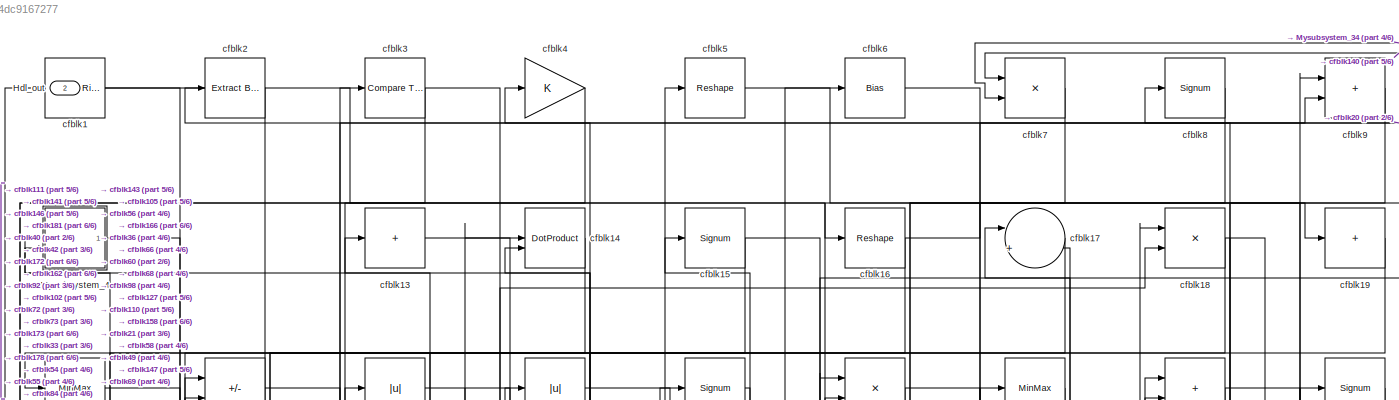
[diagram: root canvas - part 1/6, full width, top band]
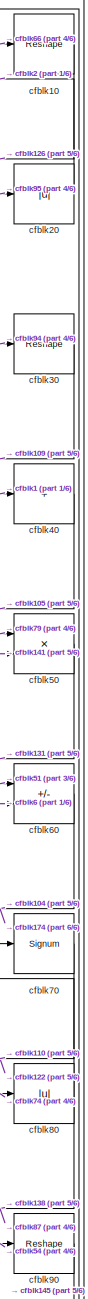
[diagram: root canvas - part 2/6, top right region]
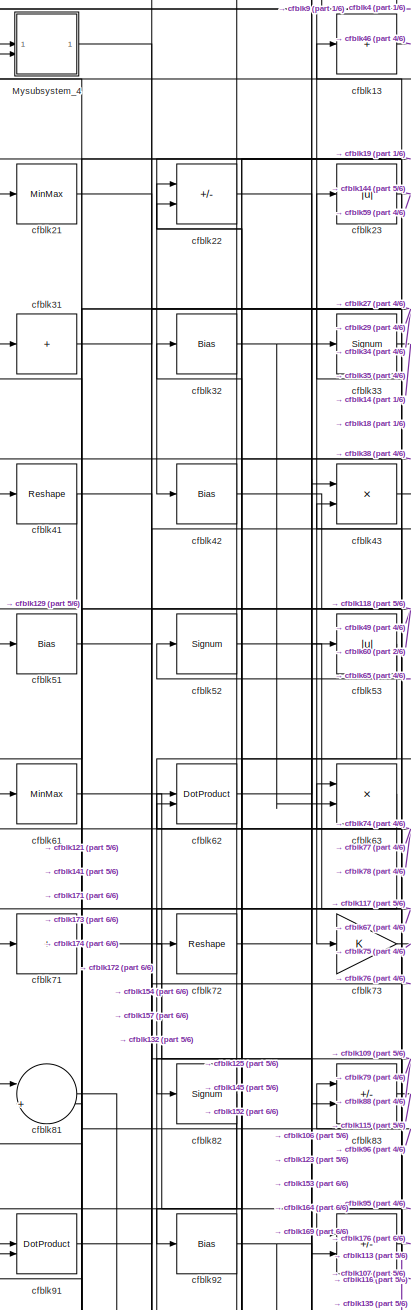
[diagram: root canvas - part 3/6, top left region]
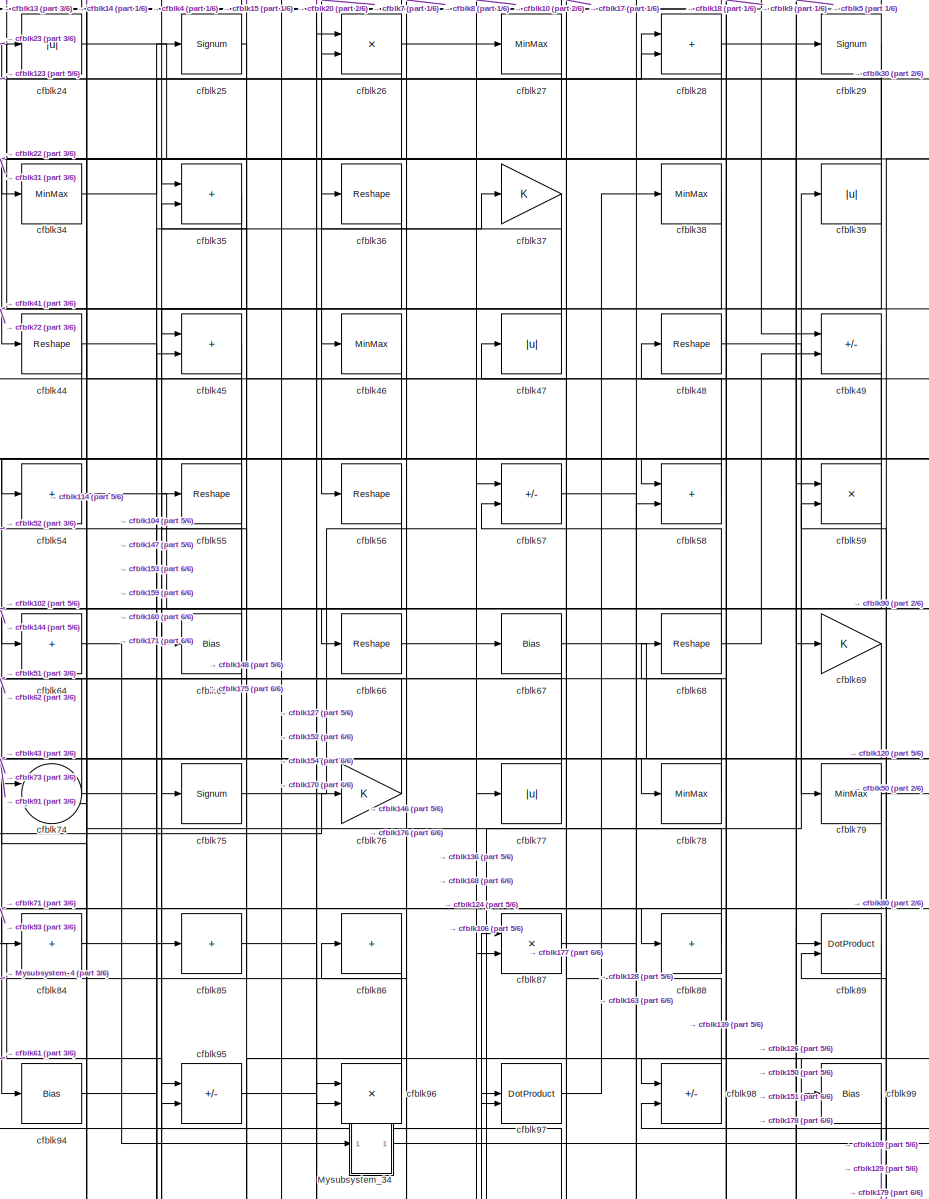
[diagram: root canvas - part 4/6, top center region]
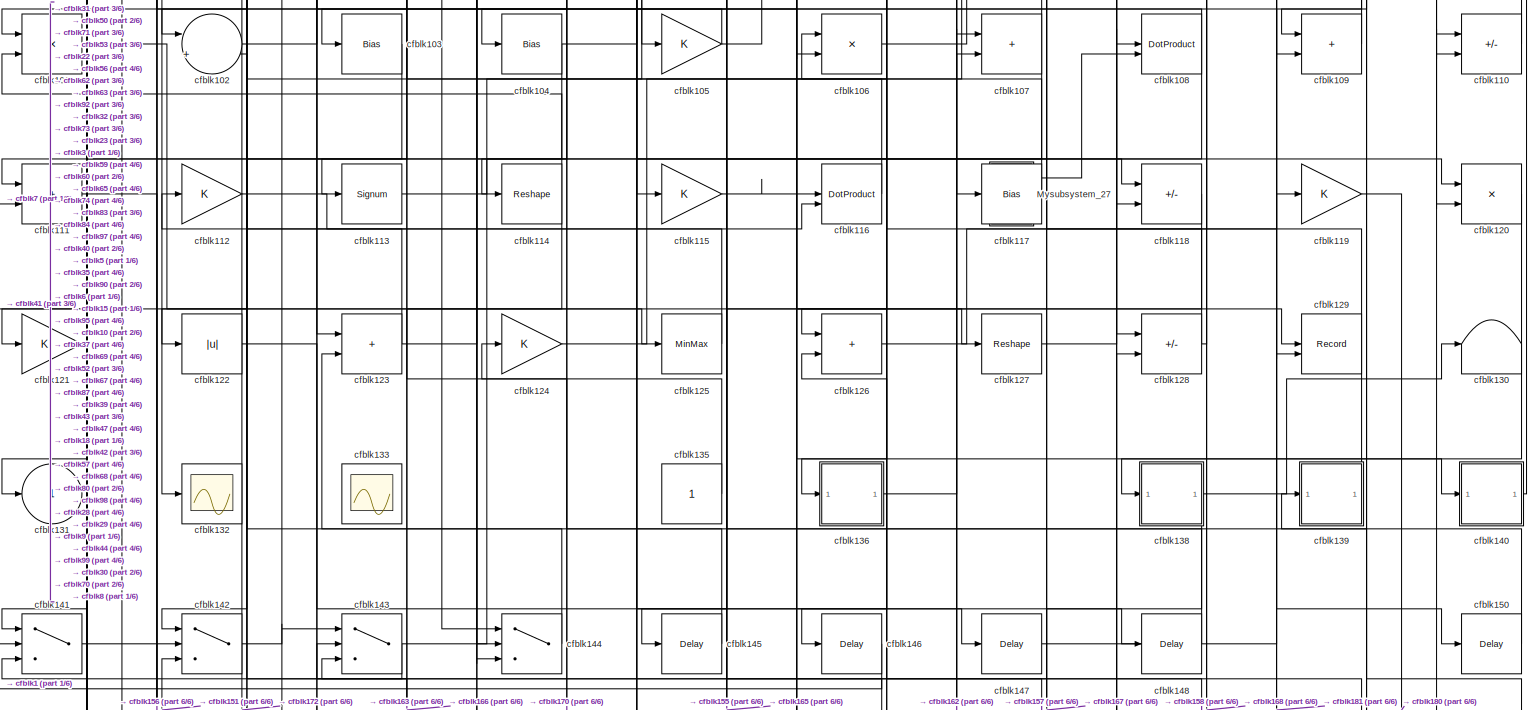
[diagram: root canvas - part 5/6, full width, middle band]
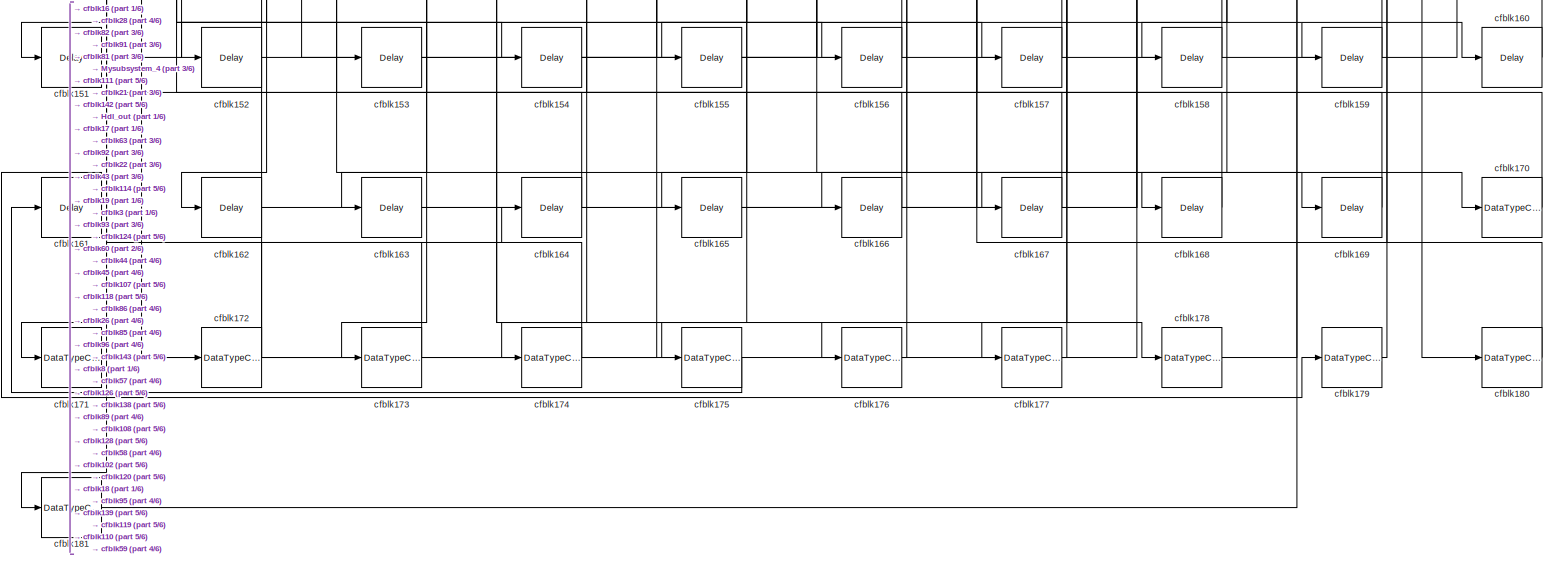
[diagram: root canvas - part 6/6, full width, bottom band]
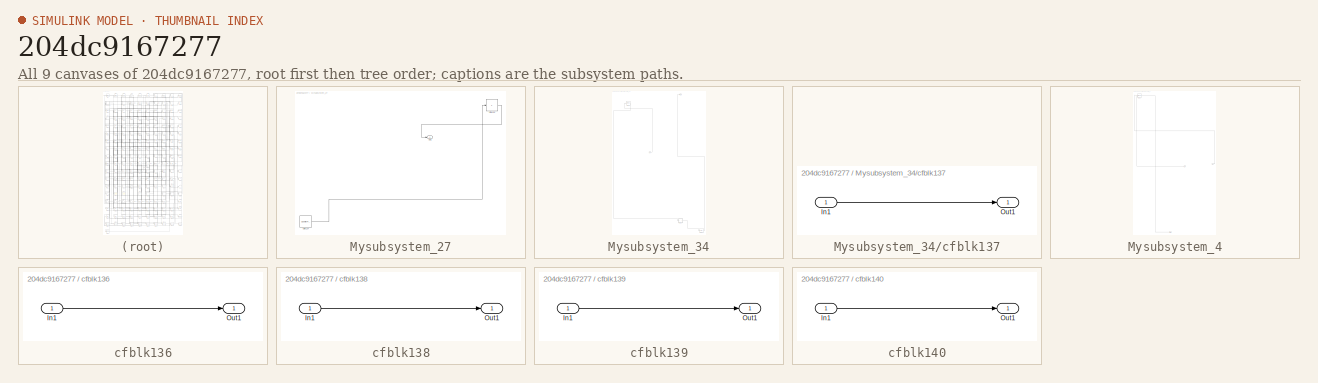
[diagram: thumbnail index - all 9 canvases of the model, root first then tree order]
MODEL slx_204dc9167277
KIND model
CONFIG AbsTol = auto
CONFIG EnableMultiTasking = off
CONFIG FixedStep = auto
CONFIG MaxStep = auto
CONFIG MinStep = auto
CONFIG RelTol = 1e-3
CONFIG SampleTimeConstraint = Unconstrained
CONFIG SolverName = VariableStepAuto
CONFIG StartTime = 0.0
CONFIG StopTime = 10.0
BLOCK [Outport] Hdl_out
  OutDataTypeStr = uint8
  Port = 2
BLOCK [SubSystem] Mysubsystem_27
  RTWFcnName = Mysubsystem_27
  RTWFcnNameOpts = User specified
  RTWFileNameOpts = Use function name
  RTWSystemCode = Reusable function
  TreatAsAtomicUnit = on
BLOCK [Outport] Mysubsystem_27/Out1
BLOCK [Sum] Mysubsystem_27/cfblk100
  IconShape = rectangular
  Inputs = +
BLOCK [Reference] Mysubsystem_27/cfblk134  REF=hdlsllib/Sources/Counter
Free-Running
  SourceBlock = hdlsllib/Sources/Counter\nFree-Running
  SourceType = Counter Free-Running
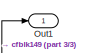
[diagram: Mysubsystem_34 - part 1/3, top right region]
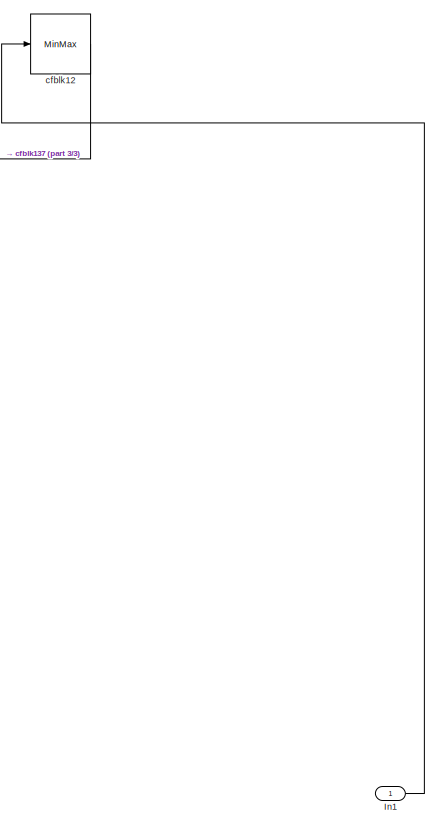
[diagram: Mysubsystem_34 - part 2/3, top left region]
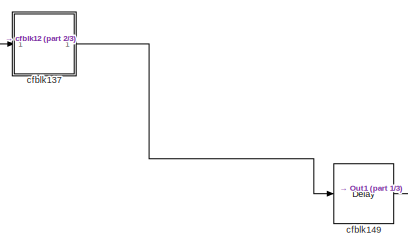
[diagram: Mysubsystem_34 - part 3/3, bottom right region]
BLOCK [SubSystem] Mysubsystem_34
  RTWFcnName = Mysubsystem_34
  RTWFcnNameOpts = User specified
  RTWFileNameOpts = Use function name
  RTWSystemCode = Reusable function
  TreatAsAtomicUnit = on
BLOCK [Inport] Mysubsystem_34/In1
BLOCK [Outport] Mysubsystem_34/Out1
BLOCK [MinMax] Mysubsystem_34/cfblk12
BLOCK [SubSystem] Mysubsystem_34/cfblk137
  LibrarySourceBlock = hdlsllib/Ports &\nSubsystems/Subsystem
BLOCK [Inport] Mysubsystem_34/cfblk137/In1
BLOCK [Outport] Mysubsystem_34/cfblk137/Out1
BLOCK [Delay] Mysubsystem_34/cfblk149
  InputPortMap = u0
  SampleTime = 1
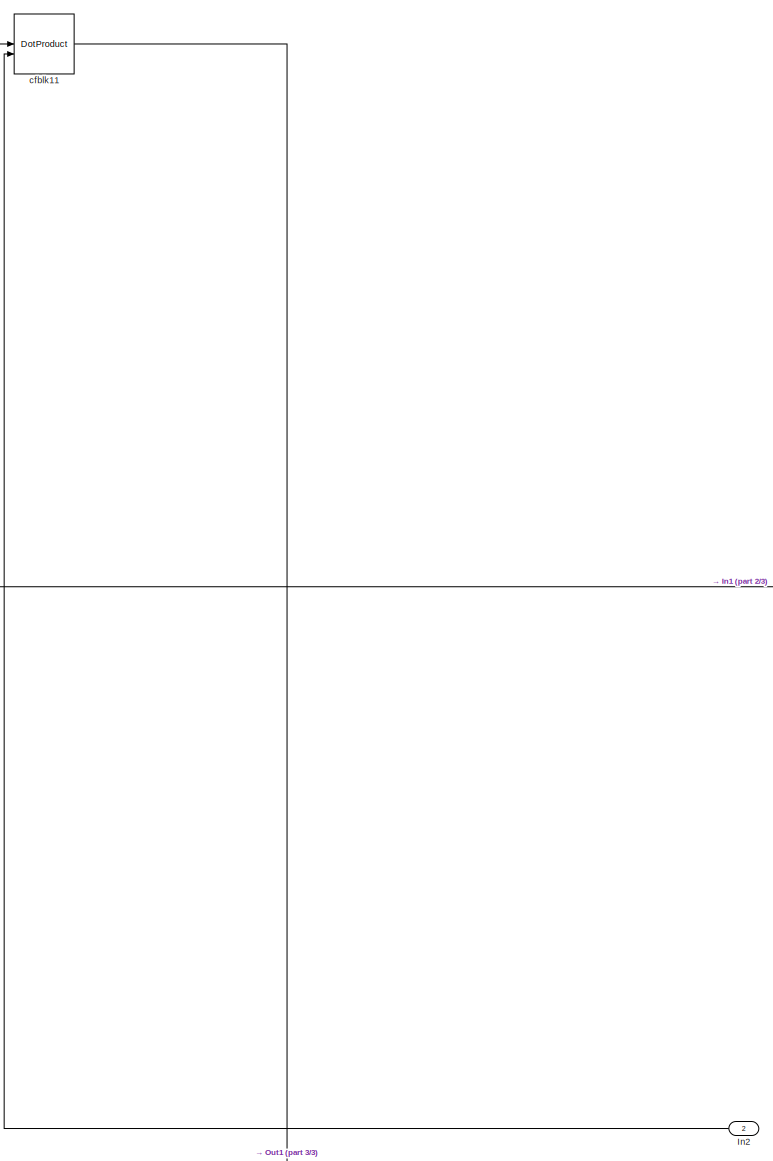
[diagram: Mysubsystem_4 - part 1/3, top center region]
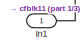
[diagram: Mysubsystem_4 - part 2/3, middle right region]
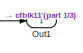
[diagram: Mysubsystem_4 - part 3/3, bottom center region]
BLOCK [SubSystem] Mysubsystem_4
  RTWFcnName = Mysubsystem_4
  RTWFcnNameOpts = User specified
  RTWFileNameOpts = Use function name
  RTWSystemCode = Reusable function
  TreatAsAtomicUnit = on
BLOCK [Inport] Mysubsystem_4/In1
BLOCK [Inport] Mysubsystem_4/In2
  Port = 2
BLOCK [Outport] Mysubsystem_4/Out1
BLOCK [DotProduct] Mysubsystem_4/cfblk11
  OutDataTypeStr = Inherit: Inherit via internal rule
BLOCK [Reference] cfblk1  REF=hdlsllib/Logic and Bit
Operations/Detect Rise
Nonnegative
  SourceBlock = hdlsllib/Logic and Bit\nOperations/Detect Rise\nNonnegative
  SourceType = Detect Rise Nonnegative
BLOCK [Reshape] cfblk10
BLOCK [Product] cfblk101
  Inputs = */
  OutDataTypeStr = uint8
  RndMeth = Zero
  SaturateOnIntegerOverflow = on
BLOCK [Sum] cfblk102
  Inputs = |++
  OutDataTypeStr = uint8
BLOCK [Bias] cfblk103
  Bias = 0.0
  SaturateOnIntegerOverflow = off
BLOCK [Bias] cfblk104
  Bias = 0.0
  SaturateOnIntegerOverflow = off
BLOCK [Gain] cfblk105
  OutDataTypeStr = uint8
BLOCK [Product] cfblk106
  Inputs = */
  OutDataTypeStr = uint8
  RndMeth = Zero
  SaturateOnIntegerOverflow = on
BLOCK [Sum] cfblk107
  IconShape = rectangular
  OutDataTypeStr = uint8
BLOCK [DotProduct] cfblk108
  OutDataTypeStr = uint8
BLOCK [Sum] cfblk109
  IconShape = rectangular
  OutDataTypeStr = uint8
BLOCK [Sum] cfblk110
  IconShape = rectangular
  Inputs = +-
  OutDataTypeStr = uint8
BLOCK [Sum] cfblk111
  IconShape = rectangular
  OutDataTypeStr = uint8
BLOCK [Gain] cfblk112
  OutDataTypeStr = uint8
BLOCK [Signum] cfblk113
BLOCK [Reshape] cfblk114
BLOCK [Gain] cfblk115
  OutDataTypeStr = uint8
BLOCK [DotProduct] cfblk116
  OutDataTypeStr = uint8
BLOCK [Bias] cfblk117
  Bias = 0.0
  SaturateOnIntegerOverflow = off
BLOCK [Sum] cfblk118
  IconShape = rectangular
  Inputs = +-
  OutDataTypeStr = uint8
BLOCK [Gain] cfblk119
  OutDataTypeStr = uint8
BLOCK [Product] cfblk120
  Inputs = */
  OutDataTypeStr = uint8
  RndMeth = Zero
  SaturateOnIntegerOverflow = on
BLOCK [Gain] cfblk121
  OutDataTypeStr = uint8
BLOCK [Abs] cfblk122
  OutDataTypeStr = uint8
  SaturateOnIntegerOverflow = off
BLOCK [Sum] cfblk123
  IconShape = rectangular
  OutDataTypeStr = uint8
BLOCK [Gain] cfblk124
  OutDataTypeStr = uint8
BLOCK [MinMax] cfblk125
  OutDataTypeStr = uint8
BLOCK [Sum] cfblk126
  IconShape = rectangular
  OutDataTypeStr = uint8
BLOCK [Reshape] cfblk127
BLOCK [Sum] cfblk128
  IconShape = rectangular
  Inputs = +-
  OutDataTypeStr = uint8
BLOCK [Record] cfblk129
  CompatibilityTag = XY
  FileSettingsInternal = {"entries":[{"content":{"excelSettings":{"content":{},"type":"Streamout.ExcelSettings"}},"type":"Streamout.FileSettingStorage","uuid":""}],"packageUris":["http:\/\/schema.mathworks.com\/mf0\/streamout_blocks\/R2020a"],"version":"1.0"}
  Layout = [1 1]
  SignalsInternal = {"entries":[{"content":{"signals":[{"content":{"blockPath":[],"dimensions":[1],"domain":"","lineColor":"#a2142f","plots":[1],"port":1,"signalID":44252,"signalName":"cfblk41"},"type":"RecordBlkView.Signal","uuid":""},{"content":{"blockPath":[],"dimensions":[1],"domain":"","lineColor":"#139fff","plots":[1],"port":2,"signalID":44255,"signalName":"cfblk99"},"type":"RecordBlkView.Signal","uuid":""}]},"...<+142ch>
  VisualizationBindings = {"xyplotplugin":{"info":[{"series":[{"bindingParametersList":[{"parameter":"X-Axis","signalID":44252,"signalName":"cfblk41"},{"parameter":"Y-Axis","signalID":44255,"signalName":"cfblk99"}],"seriesID":27918}],"subplotID":1}]}}
  st = -1
BLOCK [Sum] cfblk13
  IconShape = rectangular
  Inputs = +
  OutDataTypeStr = uint8
BLOCK [Terminator] cfblk130
BLOCK [Outport] cfblk131
  OutDataTypeStr = uint8
  VectorParamsAs1DForOutWhenUnconnected = off
BLOCK [Scope] cfblk132
  Floating = off
  NumInputPorts = 1
  ScopeSpecificationString = Simulink.scopes.TimeScopeBlockCfg('CurrentConfiguration', extmgr.ConfigurationSet(extmgr.Configuration('Core','General UI',true),extmgr.Configuration('Core','Source UI',true),extmgr.Configuration('Sources','WiredSimulink',true,'DataLoggingVariableName','ScopeData2','DataLoggingSaveFormat','Array','DataLoggingLimitDataPoints',true,'DataLoggingDecimation','1'),extmgr.Configuration('Visuals','Time Do...<+868ch>
BLOCK [Scope] cfblk133
  Floating = on
  NumInputPorts = 1
  ScopeSpecificationString = Simulink.scopes.TimeScopeBlockCfg('CurrentConfiguration', extmgr.ConfigurationSet(extmgr.Configuration('Core','General UI',true,'FigureColor',[0.156862745098039 0.156862745098039 0.156862745098039]),extmgr.Configuration('Core','Source UI',true),extmgr.Configuration('Sources','WiredSimulink',true,'DataLoggingVariableName','ScopeData1','DataLoggingSaveFormat','StructureWithTime','DataLoggingLimitDat...<+2713ch>
BLOCK [Constant] cfblk135
  OutDataTypeStr = uint8
  SampleTime = -1
BLOCK [SubSystem] cfblk136
  LibrarySourceBlock = hdlsllib/Ports &\nSubsystems/Subsystem
BLOCK [Inport] cfblk136/In1
BLOCK [Outport] cfblk136/Out1
BLOCK [SubSystem] cfblk138
  LibrarySourceBlock = hdlsllib/Ports &\nSubsystems/Subsystem
BLOCK [Inport] cfblk138/In1
BLOCK [Outport] cfblk138/Out1
BLOCK [SubSystem] cfblk139
  LibrarySourceBlock = hdlsllib/Ports &\nSubsystems/Subsystem
BLOCK [Inport] cfblk139/In1
BLOCK [Outport] cfblk139/Out1
BLOCK [DotProduct] cfblk14
  OutDataTypeStr = uint8
BLOCK [SubSystem] cfblk140
  LibrarySourceBlock = hdlsllib/Ports &\nSubsystems/Subsystem
BLOCK [Inport] cfblk140/In1
BLOCK [Outport] cfblk140/Out1
BLOCK [Switch] cfblk141
  InputSameDT = off
  OutDataTypeStr = uint8
  SaturateOnIntegerOverflow = off
BLOCK [Switch] cfblk142
  InputSameDT = off
  OutDataTypeStr = uint8
  SaturateOnIntegerOverflow = off
BLOCK [Switch] cfblk143
  InputSameDT = off
  OutDataTypeStr = uint8
  SaturateOnIntegerOverflow = off
BLOCK [Switch] cfblk144
  InputSameDT = off
  OutDataTypeStr = uint8
  SaturateOnIntegerOverflow = off
BLOCK [Delay] cfblk145
  InputPortMap = u0
  SampleTime = 1
BLOCK [Delay] cfblk146
  InputPortMap = u0
  SampleTime = 1
BLOCK [Delay] cfblk147
  InputPortMap = u0
  SampleTime = 1
BLOCK [Delay] cfblk148
  InputPortMap = u0
  SampleTime = 1
BLOCK [Signum] cfblk15
BLOCK [Delay] cfblk150
  InputPortMap = u0
  SampleTime = 1
BLOCK [Delay] cfblk151
  InputPortMap = u0
  SampleTime = 1
BLOCK [Delay] cfblk152
  InputPortMap = u0
  SampleTime = 1
BLOCK [Delay] cfblk153
  InputPortMap = u0
  SampleTime = 1
BLOCK [Delay] cfblk154
  InputPortMap = u0
  SampleTime = 1
BLOCK [Delay] cfblk155
  InputPortMap = u0
  SampleTime = 1
BLOCK [Delay] cfblk156
  InputPortMap = u0
  SampleTime = 1
BLOCK [Delay] cfblk157
  InputPortMap = u0
  SampleTime = 1
BLOCK [Delay] cfblk158
  InputPortMap = u0
  SampleTime = 1
BLOCK [Delay] cfblk159
  InputPortMap = u0
  SampleTime = 1
BLOCK [Reshape] cfblk16
BLOCK [Delay] cfblk160
  InputPortMap = u0
  SampleTime = 1
BLOCK [Delay] cfblk161
  InputPortMap = u0
  SampleTime = 1
BLOCK [Delay] cfblk162
  InputPortMap = u0
  SampleTime = 1
BLOCK [Delay] cfblk163
  InputPortMap = u0
  SampleTime = 1
BLOCK [Delay] cfblk164
  InputPortMap = u0
  SampleTime = 1
BLOCK [Delay] cfblk165
  InputPortMap = u0
  SampleTime = 1
BLOCK [Delay] cfblk166
  InputPortMap = u0
  SampleTime = 1
BLOCK [Delay] cfblk167
  InputPortMap = u0
  SampleTime = 1
BLOCK [Delay] cfblk168
  InputPortMap = u0
  SampleTime = 1
BLOCK [Delay] cfblk169
  InputPortMap = u0
  SampleTime = 1
BLOCK [Sum] cfblk17
  Inputs = |++
  OutDataTypeStr = uint8
BLOCK [DataTypeConversion] cfblk170
  OutDataTypeStr = uint8
  RndMeth = Floor
  SaturateOnIntegerOverflow = off
BLOCK [DataTypeConversion] cfblk171
  OutDataTypeStr = uint8
  RndMeth = Floor
  SaturateOnIntegerOverflow = off
BLOCK [DataTypeConversion] cfblk172
  OutDataTypeStr = uint8
  RndMeth = Floor
  SaturateOnIntegerOverflow = off
BLOCK [DataTypeConversion] cfblk173
  OutDataTypeStr = uint8
  RndMeth = Floor
  SaturateOnIntegerOverflow = off
BLOCK [DataTypeConversion] cfblk174
  OutDataTypeStr = uint8
  RndMeth = Floor
  SaturateOnIntegerOverflow = off
BLOCK [DataTypeConversion] cfblk175
  OutDataTypeStr = uint8
  RndMeth = Floor
  SaturateOnIntegerOverflow = off
BLOCK [DataTypeConversion] cfblk176
  OutDataTypeStr = uint8
  RndMeth = Floor
  SaturateOnIntegerOverflow = off
BLOCK [DataTypeConversion] cfblk177
  OutDataTypeStr = uint8
  RndMeth = Floor
  SaturateOnIntegerOverflow = off
BLOCK [DataTypeConversion] cfblk178
  OutDataTypeStr = uint8
  RndMeth = Floor
  SaturateOnIntegerOverflow = off
BLOCK [DataTypeConversion] cfblk179
  OutDataTypeStr = uint8
  RndMeth = Floor
  SaturateOnIntegerOverflow = off
BLOCK [Product] cfblk18
  Inputs = */
  OutDataTypeStr = uint8
  RndMeth = Zero
  SaturateOnIntegerOverflow = on
BLOCK [DataTypeConversion] cfblk180
  OutDataTypeStr = uint8
  RndMeth = Floor
  SaturateOnIntegerOverflow = off
BLOCK [DataTypeConversion] cfblk181
  OutDataTypeStr = uint8
  RndMeth = Floor
  SaturateOnIntegerOverflow = off
BLOCK [Sum] cfblk19
  IconShape = rectangular
  Inputs = +
  OutDataTypeStr = uint8
BLOCK [Reference] cfblk2  REF=simulink/Logic and Bit
Operations/Extract Bits
  LibrarySourceBlock = hdlsllib/Logic and Bit\nOperations/Extract Bits
  SourceBlock = simulink/Logic and Bit\nOperations/Extract Bits
  SourceType = Extract Bits
BLOCK [Abs] cfblk20
  OutDataTypeStr = uint8
  SaturateOnIntegerOverflow = off
BLOCK [MinMax] cfblk21
  OutDataTypeStr = uint8
BLOCK [Sum] cfblk22
  IconShape = rectangular
  Inputs = +-
  OutDataTypeStr = uint8
BLOCK [Abs] cfblk23
  OutDataTypeStr = uint8
  SaturateOnIntegerOverflow = off
BLOCK [Abs] cfblk24
  OutDataTypeStr = uint8
  SaturateOnIntegerOverflow = off
BLOCK [Signum] cfblk25
BLOCK [Product] cfblk26
  Inputs = */
  OutDataTypeStr = uint8
  RndMeth = Zero
  SaturateOnIntegerOverflow = on
BLOCK [MinMax] cfblk27
  OutDataTypeStr = uint8
BLOCK [Sum] cfblk28
  IconShape = rectangular
  OutDataTypeStr = uint8
BLOCK [Signum] cfblk29
BLOCK [Reference] cfblk3  REF=hdlsllib/Logic and Bit
Operations/Compare
To Zero
  SourceBlock = hdlsllib/Logic and Bit\nOperations/Compare\nTo Zero
  SourceType = Compare To Zero
BLOCK [Reshape] cfblk30
BLOCK [Sum] cfblk31
  IconShape = rectangular
  Inputs = +
  OutDataTypeStr = uint8
BLOCK [Bias] cfblk32
  Bias = 0.0
  SaturateOnIntegerOverflow = off
BLOCK [Signum] cfblk33
BLOCK [MinMax] cfblk34
  OutDataTypeStr = uint8
BLOCK [Sum] cfblk35
  IconShape = rectangular
  OutDataTypeStr = uint8
BLOCK [Reshape] cfblk36
BLOCK [Gain] cfblk37
  OutDataTypeStr = uint8
BLOCK [MinMax] cfblk38
  OutDataTypeStr = uint8
BLOCK [Abs] cfblk39
  OutDataTypeStr = uint8
  SaturateOnIntegerOverflow = off
BLOCK [Gain] cfblk4
  OutDataTypeStr = uint8
BLOCK [Sum] cfblk40
  IconShape = rectangular
  Inputs = +
  OutDataTypeStr = uint8
BLOCK [Reshape] cfblk41
BLOCK [Bias] cfblk42
  Bias = 0.0
  SaturateOnIntegerOverflow = off
BLOCK [Product] cfblk43
  Inputs = */
  OutDataTypeStr = uint8
  RndMeth = Zero
  SaturateOnIntegerOverflow = on
BLOCK [Reshape] cfblk44
BLOCK [Sum] cfblk45
  IconShape = rectangular
  OutDataTypeStr = uint8
BLOCK [MinMax] cfblk46
  OutDataTypeStr = uint8
BLOCK [Abs] cfblk47
  OutDataTypeStr = uint8
  SaturateOnIntegerOverflow = off
BLOCK [Reshape] cfblk48
BLOCK [Sum] cfblk49
  IconShape = rectangular
  Inputs = +-
  OutDataTypeStr = uint8
BLOCK [Reshape] cfblk5
BLOCK [Product] cfblk50
  Inputs = */
  OutDataTypeStr = uint8
  RndMeth = Zero
  SaturateOnIntegerOverflow = on
BLOCK [Bias] cfblk51
  Bias = 0.0
  SaturateOnIntegerOverflow = off
BLOCK [Signum] cfblk52
BLOCK [Abs] cfblk53
  OutDataTypeStr = uint8
  SaturateOnIntegerOverflow = off
BLOCK [Sum] cfblk54
  IconShape = rectangular
  Inputs = +
  OutDataTypeStr = uint8
BLOCK [Reshape] cfblk55
BLOCK [Reshape] cfblk56
BLOCK [Sum] cfblk57
  IconShape = rectangular
  Inputs = +-
  OutDataTypeStr = uint8
BLOCK [Sum] cfblk58
  IconShape = rectangular
  OutDataTypeStr = uint8
BLOCK [Product] cfblk59
  Inputs = */
  OutDataTypeStr = uint8
  RndMeth = Zero
  SaturateOnIntegerOverflow = on
BLOCK [Bias] cfblk6
  Bias = 0.0
  SaturateOnIntegerOverflow = off
BLOCK [Sum] cfblk60
  IconShape = rectangular
  Inputs = +-
  OutDataTypeStr = uint8
BLOCK [MinMax] cfblk61
  OutDataTypeStr = uint8
BLOCK [DotProduct] cfblk62
  OutDataTypeStr = uint8
BLOCK [Product] cfblk63
  Inputs = */
  OutDataTypeStr = uint8
  RndMeth = Zero
  SaturateOnIntegerOverflow = on
BLOCK [Sum] cfblk64
  IconShape = rectangular
  Inputs = +
  OutDataTypeStr = uint8
BLOCK [Bias] cfblk65
  Bias = 0.0
  SaturateOnIntegerOverflow = off
BLOCK [Reshape] cfblk66
BLOCK [Bias] cfblk67
  Bias = 0.0
  SaturateOnIntegerOverflow = off
BLOCK [Reshape] cfblk68
BLOCK [Gain] cfblk69
  OutDataTypeStr = uint8
BLOCK [Product] cfblk7
  Inputs = */
  OutDataTypeStr = uint8
  RndMeth = Zero
  SaturateOnIntegerOverflow = on
BLOCK [Signum] cfblk70
BLOCK [Sum] cfblk71
  IconShape = rectangular
  Inputs = +
  OutDataTypeStr = uint8
BLOCK [Reshape] cfblk72
BLOCK [Gain] cfblk73
  OutDataTypeStr = uint8
BLOCK [Sum] cfblk74
  Inputs = |++
  OutDataTypeStr = uint8
BLOCK [Signum] cfblk75
BLOCK [Gain] cfblk76
  OutDataTypeStr = uint8
BLOCK [Abs] cfblk77
  OutDataTypeStr = uint8
  SaturateOnIntegerOverflow = off
BLOCK [MinMax] cfblk78
  OutDataTypeStr = uint8
BLOCK [MinMax] cfblk79
  OutDataTypeStr = uint8
BLOCK [Signum] cfblk8
BLOCK [Abs] cfblk80
  OutDataTypeStr = uint8
  SaturateOnIntegerOverflow = off
BLOCK [Sum] cfblk81
  Inputs = |++
  OutDataTypeStr = uint8
BLOCK [Signum] cfblk82
BLOCK [Sum] cfblk83
  IconShape = rectangular
  Inputs = +-
  OutDataTypeStr = uint8
BLOCK [Sum] cfblk84
  IconShape = rectangular
  Inputs = +
  OutDataTypeStr = uint8
BLOCK [Sum] cfblk85
  IconShape = rectangular
  Inputs = +
  OutDataTypeStr = uint8
BLOCK [Sum] cfblk86
  IconShape = rectangular
  Inputs = +
  OutDataTypeStr = uint8
BLOCK [Product] cfblk87
  Inputs = */
  OutDataTypeStr = uint8
  RndMeth = Zero
  SaturateOnIntegerOverflow = on
BLOCK [Sum] cfblk88
  IconShape = rectangular
  Inputs = +
  OutDataTypeStr = uint8
BLOCK [DotProduct] cfblk89
  OutDataTypeStr = uint8
BLOCK [Sum] cfblk9
  IconShape = rectangular
  OutDataTypeStr = uint8
BLOCK [Reshape] cfblk90
BLOCK [DotProduct] cfblk91
  OutDataTypeStr = uint8
BLOCK [Bias] cfblk92
  Bias = 0.0
  SaturateOnIntegerOverflow = off
BLOCK [Sum] cfblk93
  IconShape = rectangular
  Inputs = +-
  OutDataTypeStr = uint8
BLOCK [Bias] cfblk94
  Bias = 0.0
  SaturateOnIntegerOverflow = off
BLOCK [Sum] cfblk95
  IconShape = rectangular
  Inputs = +-
  OutDataTypeStr = uint8
BLOCK [Product] cfblk96
  Inputs = */
  OutDataTypeStr = uint8
  RndMeth = Zero
  SaturateOnIntegerOverflow = on
BLOCK [DotProduct] cfblk97
  OutDataTypeStr = uint8
BLOCK [Sum] cfblk98
  IconShape = rectangular
  Inputs = +-
  OutDataTypeStr = uint8
BLOCK [Bias] cfblk99
  Bias = 0.0
  SaturateOnIntegerOverflow = off
LINE Mysubsystem_27/cfblk100:1 -> Mysubsystem_27/Out1:1
LINE Mysubsystem_27/cfblk134:1 -> Mysubsystem_27/cfblk100:1
LINE Mysubsystem_27:1 -> cfblk108:2
LINE Mysubsystem_34/In1:1 -> Mysubsystem_34/cfblk12:1
LINE Mysubsystem_34/cfblk12:1 -> Mysubsystem_34/cfblk137:1
LINE Mysubsystem_34/cfblk137/In1:1 -> Mysubsystem_34/cfblk137/Out1:1
LINE Mysubsystem_34/cfblk137:1 -> Mysubsystem_34/cfblk149:1
LINE Mysubsystem_34/cfblk149:1 -> Mysubsystem_34/Out1:1
LINE Mysubsystem_34:1 -> cfblk7:2
LINE Mysubsystem_4/In1:1 -> Mysubsystem_4/cfblk11:1
LINE Mysubsystem_4/In2:1 -> Mysubsystem_4/cfblk11:2
LINE Mysubsystem_4/cfblk11:1 -> Mysubsystem_4/Out1:1
LINE Mysubsystem_4:1 -> cfblk154:1
LINE cfblk101:1 -> cfblk125:1
LINE cfblk102:1 -> cfblk3:1
LINE cfblk103:1 -> cfblk142:1
NET cfblk104:1 -> cfblk111:1, cfblk97:2
NET cfblk105:1 -> cfblk103:1, cfblk6:1
LINE cfblk106:1 -> cfblk39:1
NET cfblk107:1 -> cfblk155:1, cfblk43:2
NET cfblk108:1 -> cfblk101:1, cfblk121:1
LINE cfblk109:1 -> cfblk44:1
LINE cfblk10:1 -> cfblk126:1
LINE cfblk110:1 -> cfblk8:1
LINE cfblk111:1 -> cfblk156:1
LINE cfblk112:1 -> cfblk116:2
LINE cfblk113:1 -> cfblk118:1
NET cfblk114:1 -> cfblk101:2, cfblk163:1
LINE cfblk115:1 -> cfblk116:1
LINE cfblk116:1 -> cfblk63:1
LINE cfblk117:1 -> cfblk32:1
LINE cfblk118:1 -> cfblk165:1
LINE cfblk119:1 -> cfblk180:1
LINE cfblk120:1 -> cfblk168:1
LINE cfblk121:1 -> cfblk31:1
LINE cfblk122:1 -> cfblk148:1
NET cfblk123:1 -> cfblk112:1, cfblk28:1
LINE cfblk124:1 -> cfblk87:1
LINE cfblk125:1 -> cfblk62:1
LINE cfblk126:1 -> cfblk29:1
LINE cfblk127:1 -> cfblk18:1
NET cfblk128:1 -> cfblk47:1, cfblk68:1
LINE cfblk135:1 -> cfblk83:1
LINE cfblk136/In1:1 -> cfblk136/Out1:1
LINE cfblk136:1 -> cfblk67:1
LINE cfblk138/In1:1 -> cfblk138/Out1:1
NET cfblk138:1 -> cfblk130:1, cfblk167:1
LINE cfblk139/In1:1 -> cfblk139/Out1:1
NET cfblk139:1 -> cfblk106:1, cfblk98:2
LINE cfblk13:1 -> cfblk46:1
LINE cfblk140/In1:1 -> cfblk140/Out1:1
LINE cfblk140:1 -> cfblk7:1
LINE cfblk141:1 -> cfblk50:2
LINE cfblk142:1 -> cfblk143:1
NET cfblk143:1 -> cfblk141:3, cfblk5:1
LINE cfblk144:1 -> cfblk123:2
LINE cfblk145:1 -> cfblk22:2
LINE cfblk146:1 -> cfblk1:1
LINE cfblk147:1 -> cfblk9:1
LINE cfblk148:1 -> cfblk35:2
LINE cfblk14:1 -> cfblk92:1
LINE cfblk150:1 -> cfblk74:1
LINE cfblk151:1 -> cfblk142:3
LINE cfblk152:1 -> cfblk26:1
LINE cfblk153:1 -> cfblk45:2
LINE cfblk154:1 -> cfblk96:1
LINE cfblk155:1 -> cfblk110:1
LINE cfblk156:1 -> cfblk143:2
LINE cfblk157:1 -> cfblk126:2
LINE cfblk158:1 -> cfblk102:2
LINE cfblk159:1 -> cfblk95:2
NET cfblk15:1 -> cfblk140:1, cfblk54:1
LINE cfblk160:1 -> cfblk59:2
LINE cfblk161:1 -> cfblk179:1
LINE cfblk162:1 -> cfblk107:2
LINE cfblk163:1 -> cfblk58:2
LINE cfblk164:1 -> cfblk43:1
LINE cfblk165:1 -> cfblk128:2
LINE cfblk166:1 -> cfblk143:3
LINE cfblk167:1 -> cfblk142:2
LINE cfblk168:1 -> cfblk57:1
LINE cfblk169:1 -> cfblk91:2
NET cfblk16:1 -> cfblk181:1, cfblk19:1
LINE cfblk170:1 -> cfblk124:1
LINE cfblk171:1 -> cfblk85:1
NET cfblk172:1 -> Hdl_out:1, cfblk108:1, cfblk164:1
LINE cfblk173:1 -> cfblk81:1
LINE cfblk174:1 -> cfblk81:2
LINE cfblk175:1 -> cfblk161:1
LINE cfblk176:1 -> cfblk86:1
LINE cfblk177:1 -> cfblk57:2
LINE cfblk178:1 -> cfblk89:1
LINE cfblk179:1 -> cfblk89:2
LINE cfblk17:1 -> cfblk162:1
NET cfblk180:1 -> cfblk107:1, cfblk139:1
LINE cfblk181:1 -> cfblk119:1
NET cfblk18:1 -> cfblk158:1, cfblk21:1, cfblk49:1
NET cfblk19:1 -> cfblk173:1, cfblk42:1
LINE cfblk1:1 -> cfblk40:1
LINE cfblk20:1 -> cfblk2:1
LINE cfblk21:1 -> cfblk157:1
NET cfblk22:1 -> cfblk169:1, cfblk35:1
NET cfblk23:1 -> cfblk144:1, cfblk59:1
LINE cfblk24:1 -> cfblk77:1
LINE cfblk25:1 -> cfblk65:1
NET cfblk26:1 -> cfblk28:2, cfblk84:1
NET cfblk27:1 -> cfblk45:1, cfblk93:2
NET cfblk28:1 -> cfblk150:1, cfblk151:1
NET cfblk29:1 -> cfblk61:1, cfblk97:1
LINE cfblk2:1 -> cfblk16:1
LINE cfblk30:1 -> cfblk109:1
LINE cfblk31:1 -> cfblk34:1
NET cfblk32:1 -> cfblk106:2, cfblk23:1, cfblk63:2
NET cfblk33:1 -> cfblk14:1, cfblk18:2
LINE cfblk34:1 -> cfblk25:1
LINE cfblk35:1 -> cfblk72:1
LINE cfblk36:1 -> cfblk96:2
LINE cfblk37:1 -> cfblk146:1
LINE cfblk38:1 -> cfblk41:1
NET cfblk39:1 -> cfblk24:1, cfblk98:1
NET cfblk3:1 -> cfblk141:2, cfblk178:1
LINE cfblk40:1 -> cfblk105:1
NET cfblk41:1 -> cfblk129:1, cfblk83:2
LINE cfblk42:1 -> cfblk118:2
LINE cfblk43:1 -> cfblk78:1
NET cfblk44:1 -> cfblk144:3, cfblk159:1, cfblk160:1
LINE cfblk45:1 -> cfblk74:2
LINE cfblk46:1 -> cfblk94:1
LINE cfblk47:1 -> cfblk26:2
LINE cfblk48:1 -> cfblk79:1
LINE cfblk49:1 -> cfblk71:1
LINE cfblk4:1 -> cfblk73:1
LINE cfblk50:1 -> cfblk131:1
LINE cfblk51:1 -> cfblk60:1
LINE cfblk52:1 -> cfblk117:1
NET cfblk53:1 -> cfblk132:1, cfblk82:1
NET cfblk54:1 -> cfblk37:1, cfblk90:1
NET cfblk55:1 -> cfblk14:2, cfblk64:1
LINE cfblk56:1 -> cfblk102:1
LINE cfblk57:1 -> cfblk128:1
LINE cfblk58:1 -> cfblk15:1
NET cfblk59:1 -> cfblk144:2, cfblk48:1
LINE cfblk5:1 -> cfblk69:1
NET cfblk60:1 -> cfblk104:1, cfblk174:1
LINE cfblk61:1 -> cfblk95:1
LINE cfblk62:1 -> cfblk53:1
NET cfblk63:1 -> cfblk141:1, cfblk152:1
LINE cfblk64:1 -> Mysubsystem_34:1
NET cfblk65:1 -> cfblk114:1, cfblk52:1
LINE cfblk66:1 -> cfblk10:1
NET cfblk67:1 -> cfblk120:2, cfblk91:1
NET cfblk68:1 -> cfblk17:1, cfblk49:2
LINE cfblk69:1 -> cfblk136:1
LINE cfblk6:1 -> cfblk60:2
NET cfblk70:1 -> cfblk110:2, cfblk122:1
NET cfblk71:1 -> cfblk109:2, cfblk88:1
LINE cfblk72:1 -> cfblk9:2
NET cfblk73:1 -> cfblk113:1, cfblk75:1
NET cfblk74:1 -> cfblk13:1, cfblk147:1, cfblk80:1
LINE cfblk75:1 -> cfblk27:1
LINE cfblk76:1 -> cfblk22:1
LINE cfblk77:1 -> cfblk62:2
LINE cfblk78:1 -> cfblk51:1
NET cfblk79:1 -> cfblk50:1, cfblk93:1
NET cfblk7:1 -> cfblk111:2, cfblk56:1
NET cfblk80:1 -> cfblk138:1, cfblk70:1, cfblk87:2
LINE cfblk81:1 -> cfblk172:1
LINE cfblk82:1 -> cfblk171:1
LINE cfblk83:1 -> cfblk115:1
NET cfblk84:1 -> cfblk120:1, cfblk4:1
LINE cfblk85:1 -> cfblk170:1
LINE cfblk86:1 -> cfblk175:1
LINE cfblk87:1 -> cfblk99:1
LINE cfblk88:1 -> Mysubsystem_4:1
LINE cfblk89:1 -> cfblk177:1
NET cfblk8:1 -> cfblk166:1, cfblk36:1, cfblk66:1
LINE cfblk90:1 -> cfblk145:1
LINE cfblk91:1 -> cfblk76:1
NET cfblk92:1 -> cfblk123:1, cfblk153:1
NET cfblk93:1 -> cfblk176:1, cfblk33:1
LINE cfblk94:1 -> cfblk30:1
NET cfblk95:1 -> cfblk127:1, cfblk20:1
NET cfblk96:1 -> Mysubsystem_4:2, cfblk55:1
LINE cfblk97:1 -> cfblk38:1
LINE cfblk98:1 -> cfblk17:2
LINE cfblk99:1 -> cfblk129:2
LINE cfblk9:1 -> cfblk58:1
note: NET lines group one-source signal fan-out (src -> all destinations, sorted); 1:1 wires keep LINE
